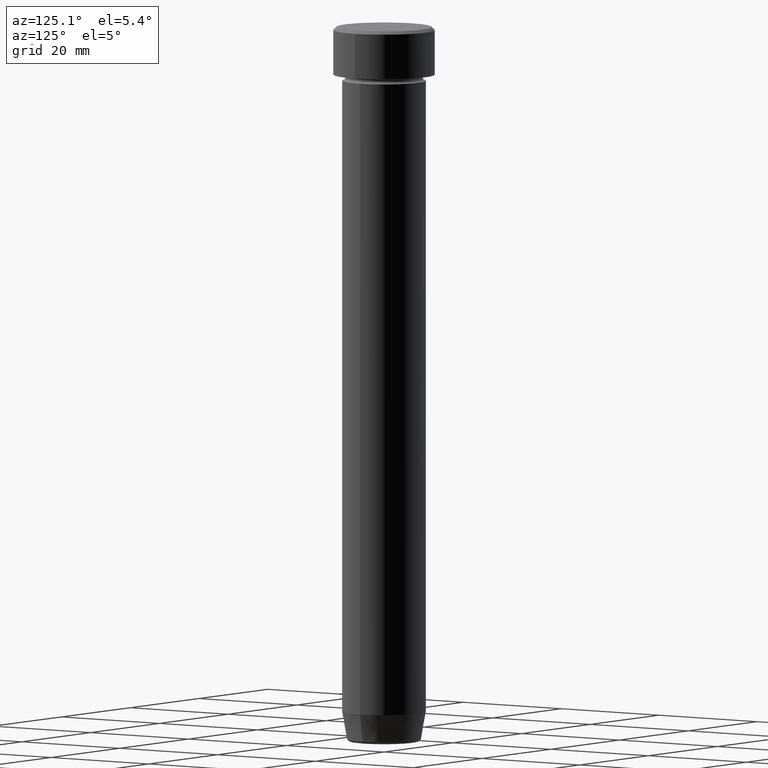
[diagram: clean part render]
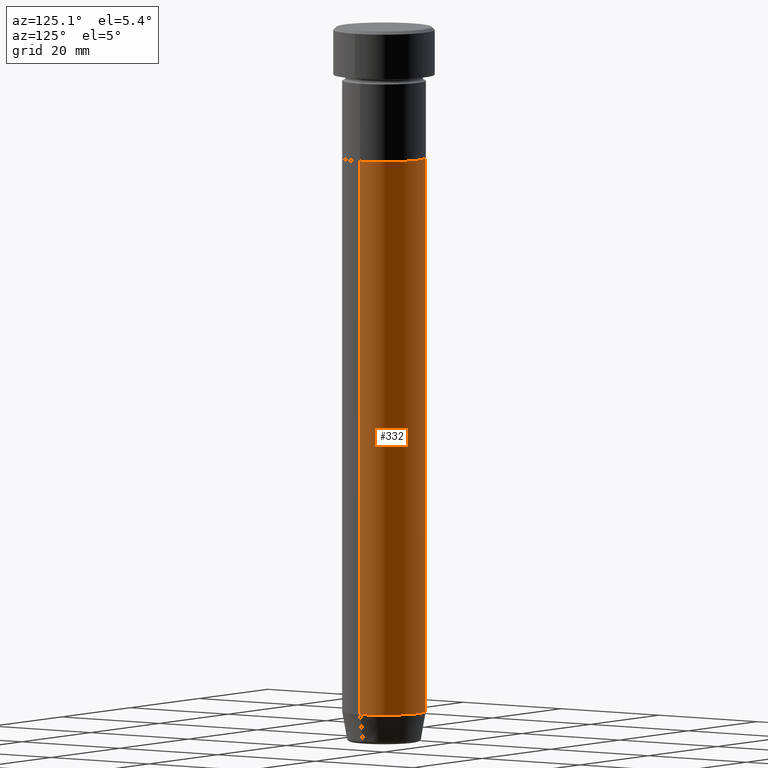
[diagram: same view with one face highlighted and labeled with its STEP entity id]
A machine part, auxiliary view. The second image highlights one B-rep face of the part: STEP entity #332.
In plain terms, the highlighted cylindrical surface (partial cylindrical patch) has radius 7 mm, axis along (-0, -0, 1).
Its self-contained STEP definition (entity closure, byte-faithful):
#10 = CARTESIAN_POINT ( 'NONE',  ( -6.999999999999999112, 8.572527594031472204E-16, -22.00000000000000000 ) ) ;
#13 = VECTOR ( 'NONE', #573, 1000.000000000000000 ) ;
#16 = CARTESIAN_POINT ( 'NONE',  ( -6.999999999999999112, 8.572527594031472204E-16, -114.9999999999999858 ) ) ;
#64 = VERTEX_POINT ( 'NONE', #10 ) ;
#96 = DIRECTION ( 'NONE',  ( 1.000000000000000000, 0.000000000000000000, 0.000000000000000000 ) ) ;
#107 = DIRECTION ( 'NONE',  ( 1.000000000000000000, 0.000000000000000000, 0.000000000000000000 ) ) ;
#123 = AXIS2_PLACEMENT_3D ( 'NONE', #554, #513, #96 ) ;
#153 = CARTESIAN_POINT ( 'NONE',  ( 6.999999999999999112, 0.000000000000000000, -114.9999999999999858 ) ) ;
#167 = EDGE_LOOP ( 'NONE', ( #172, #553, #488, #450 ) ) ;
#168 = DIRECTION ( 'NONE',  ( -0.000000000000000000, -0.000000000000000000, 1.000000000000000000 ) ) ;
#172 = ORIENTED_EDGE ( 'NONE', *, *, #409, .T. ) ;
#195 = AXIS2_PLACEMENT_3D ( 'NONE', #356, #168, #545 ) ;
#202 = CARTESIAN_POINT ( 'NONE',  ( 6.999999999999999112, 0.000000000000000000, -22.00000000000000000 ) ) ;
#205 = VERTEX_POINT ( 'NONE', #202 ) ;
#217 = EDGE_CURVE ( 'NONE', #463, #205, #578, .T. ) ;
#248 = DIRECTION ( 'NONE',  ( -0.000000000000000000, -0.000000000000000000, 1.000000000000000000 ) ) ;
#332 = ADVANCED_FACE ( 'NONE', ( #333 ), #583, .T. ) ;
#333 = FACE_OUTER_BOUND ( 'NONE', #167, .T. ) ;
#338 = LINE ( 'NONE', #339, #410 ) ;
#339 = CARTESIAN_POINT ( 'NONE',  ( -6.999999999999999112, 8.572527594031472204E-16, 0.000000000000000000 ) ) ;
#341 = CIRCLE ( 'NONE', #419, 6.999999999999999112 ) ;
#356 = CARTESIAN_POINT ( 'NONE',  ( 0.000000000000000000, 0.000000000000000000, 0.000000000000000000 ) ) ;
#372 = CIRCLE ( 'NONE', #123, 6.999999999999999112 ) ;
#396 = VERTEX_POINT ( 'NONE', #16 ) ;
#409 = EDGE_CURVE ( 'NONE', #463, #396, #341, .T. ) ;
#410 = VECTOR ( 'NONE', #523, 1000.000000000000000 ) ;
#411 = EDGE_CURVE ( 'NONE', #396, #64, #338, .T. ) ;
#419 = AXIS2_PLACEMENT_3D ( 'NONE', #471, #248, #107 ) ;
#450 = ORIENTED_EDGE ( 'NONE', *, *, #217, .F. ) ;
#463 = VERTEX_POINT ( 'NONE', #153 ) ;
#471 = CARTESIAN_POINT ( 'NONE',  ( 0.000000000000000000, 0.000000000000000000, -114.9999999999999858 ) ) ;
#488 = ORIENTED_EDGE ( 'NONE', *, *, #561, .F. ) ;
#513 = DIRECTION ( 'NONE',  ( -0.000000000000000000, -0.000000000000000000, 1.000000000000000000 ) ) ;
#523 = DIRECTION ( 'NONE',  ( -0.000000000000000000, -0.000000000000000000, 1.000000000000000000 ) ) ;
#541 = CARTESIAN_POINT ( 'NONE',  ( 6.999999999999999112, 0.000000000000000000, 0.000000000000000000 ) ) ;
#545 = DIRECTION ( 'NONE',  ( 1.000000000000000000, 0.000000000000000000, 0.000000000000000000 ) ) ;
#553 = ORIENTED_EDGE ( 'NONE', *, *, #411, .T. ) ;
#554 = CARTESIAN_POINT ( 'NONE',  ( 0.000000000000000000, 0.000000000000000000, -22.00000000000000000 ) ) ;
#561 = EDGE_CURVE ( 'NONE', #205, #64, #372, .T. ) ;
#573 = DIRECTION ( 'NONE',  ( -0.000000000000000000, -0.000000000000000000, 1.000000000000000000 ) ) ;
#578 = LINE ( 'NONE', #541, #13 ) ;
#583 = CYLINDRICAL_SURFACE ( 'NONE', #195, 6.999999999999999112 ) ;